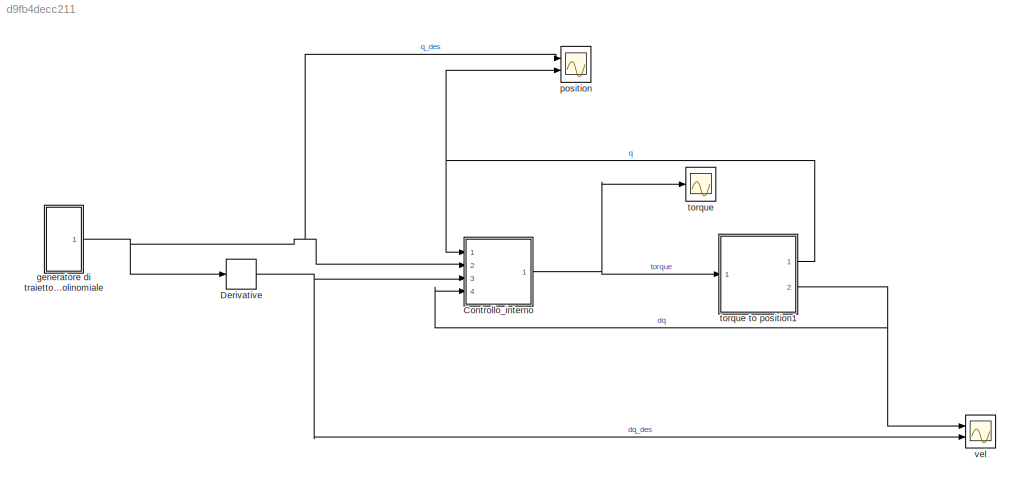
MODEL slx_d9fb4decc211
KIND model
CONFIG AbsTol = auto
CONFIG EnableMultiTasking = off
CONFIG FixedStep = 0.01
CONFIG MaxStep = auto
CONFIG MinStep = 0.01
CONFIG RelTol = 1e-3
CONFIG SampleTimeConstraint = Unconstrained
CONFIG Solver = daessc
CONFIG SolverName = daessc
CONFIG StartTime = 0.0
CONFIG StopTime = run_time
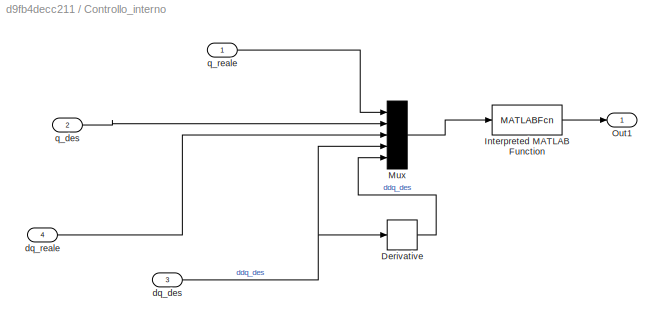
BLOCK [SubSystem] Controllo_interno
  Ports = [4, 1]
  RequestExecContextInheritance = off
BLOCK [Derivative] Controllo_interno/Derivative
BLOCK [MATLABFcn] Controllo_interno/Interpreted MATLAB Function
  MATLABFcn = controllo_interno_RNE_OSI(robot,K,ddqmax,u)
  Ports = [1, 1]
BLOCK [Mux] Controllo_interno/Mux
  DisplayOption = bar
  Inputs = 5
  Ports = [5, 1]
BLOCK [Outport] Controllo_interno/Out1
BLOCK [Inport] Controllo_interno/dq_des
  Port = 3
BLOCK [Inport] Controllo_interno/dq_reale
  Port = 4
BLOCK [Inport] Controllo_interno/q_des
  Port = 2
BLOCK [Inport] Controllo_interno/q_reale
BLOCK [Derivative] Derivative
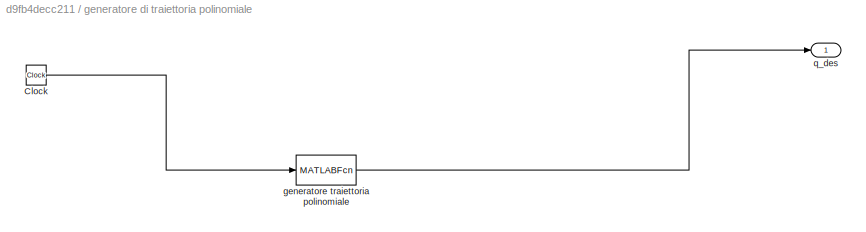
BLOCK [SubSystem] generatore di traiettoria polinomiale
  Ports = [0, 1]
  RequestExecContextInheritance = off
BLOCK [Clock] generatore di traiettoria polinomiale/Clock
BLOCK [MATLABFcn] generatore di traiettoria polinomiale/generatore traiettoria polinomiale
  MATLABFcn = prova_polinomiale( q0, q_fin, run_time, qmax, qmin, dqmax, ddqmax, u)
  Ports = [1, 1]
BLOCK [Outport] generatore di traiettoria polinomiale/q_des
  VectorParamsAs1DForOutWhenUnconnected = off
BLOCK [Scope] position
  Floating = off
  NumInputPorts = 2
  Ports = [2]
  ScopeSpecificationString = Simulink.scopes.TimeScopeBlockCfg('CurrentConfiguration', extmgr.ConfigurationSet(extmgr.Configuration('Core','General UI',true),extmgr.Configuration('Core','Source UI',true),extmgr.Configuration('Sources','WiredSimulink',true,'DataLoggingVariableName','ScopeData1'),extmgr.Configuration('Visuals','Time Domain',true,'SerializedDisplays',{struct('MinYLimReal','-2.64899','MaxYLimReal','2.97343','YLab...<+2045ch>
BLOCK [Scope] torque
  Floating = off
  NumInputPorts = 1
  Ports = [1]
  ScopeSpecificationString = Simulink.scopes.TimeScopeBlockCfg('CurrentConfiguration', extmgr.ConfigurationSet(extmgr.Configuration('Core','General UI',true),extmgr.Configuration('Core','Source UI',true),extmgr.Configuration('Sources','WiredSimulink',true,'DataLoggingVariableName','ScopeData2'),extmgr.Configuration('Visuals','Time Domain',true,'SerializedDisplays',{struct('MinYLimReal','-17.10872','MaxYLimReal','26.26325','YL...<+1692ch>
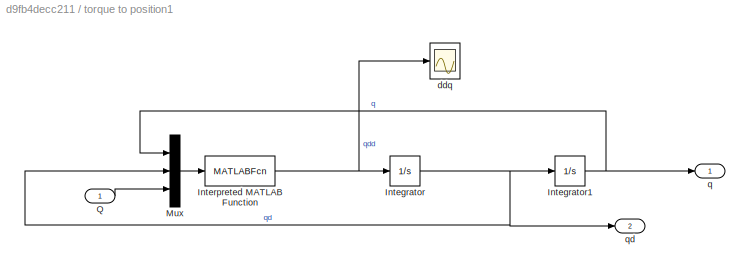
BLOCK [SubSystem] torque to position1
  Ports = [1, 2]
  RequestExecContextInheritance = off
BLOCK [Integrator] torque to position1/Integrator
  InitialCondition = dq0
  LowerSaturationLimit = -dqmax
  Ports = [1, 1]
  UpperSaturationLimit = dqmax
BLOCK [Integrator] torque to position1/Integrator1
  InitialCondition = q0
  LowerSaturationLimit = qmin
  Ports = [1, 1]
  UpperSaturationLimit = qmax2
BLOCK [MATLABFcn] torque to position1/Interpreted MATLAB Function
  MATLABFcn = accel_panda_RNE_OSI(robot,u)
  Ports = [1, 1]
BLOCK [Mux] torque to position1/Mux
  DisplayOption = bar
  Inputs = 3
  Ports = [3, 1]
BLOCK [Inport] torque to position1/Q
BLOCK [Scope] torque to position1/ddq
  Floating = off
  NumInputPorts = 1
  Ports = [1]
  ScopeSpecificationString = Simulink.scopes.TimeScopeBlockCfg('CurrentConfiguration', extmgr.ConfigurationSet(extmgr.Configuration('Core','General UI',true),extmgr.Configuration('Core','Source UI',true),extmgr.Configuration('Sources','WiredSimulink',true,'DataLoggingVariableName','ScopeData2'),extmgr.Configuration('Visuals','Time Domain',true,'SerializedDisplays',{struct('MinYLimReal','-1.63177','MaxYLimReal','1.63177','YLab...<+1803ch>
BLOCK [Outport] torque to position1/q
  VectorParamsAs1DForOutWhenUnconnected = off
BLOCK [Outport] torque to position1/qd
  Port = 2
  VectorParamsAs1DForOutWhenUnconnected = off
BLOCK [Scope] vel
  Floating = off
  NumInputPorts = 2
  Ports = [2]
  ScopeSpecificationString = Simulink.scopes.TimeScopeBlockCfg('CurrentConfiguration', extmgr.ConfigurationSet(extmgr.Configuration('Core','General UI',true),extmgr.Configuration('Core','Source UI',true),extmgr.Configuration('Sources','WiredSimulink',true,'DataLoggingVariableName','ScopeData3'),extmgr.Configuration('Visuals','Time Domain',true,'SerializedDisplays',{struct('MinYLimReal','-0.62785','MaxYLimReal','0.33701','YLab...<+1921ch>
LINE Controllo_interno/Derivative:1 -> Controllo_interno/Mux:5
LINE Controllo_interno/Interpreted MATLAB Function:1 -> Controllo_interno/Out1:1
LINE Controllo_interno/Mux:1 -> Controllo_interno/Interpreted MATLAB Function:1
NET Controllo_interno/dq_des:1 -> Controllo_interno/Derivative:1, Controllo_interno/Mux:4
LINE Controllo_interno/dq_reale:1 -> Controllo_interno/Mux:3
LINE Controllo_interno/q_des:1 -> Controllo_interno/Mux:2
LINE Controllo_interno/q_reale:1 -> Controllo_interno/Mux:1
NET Controllo_interno:1 -> torque to position1:1, torque:1
NET Derivative:1 -> Controllo_interno:3, vel:2
LINE generatore di traiettoria polinomiale/Clock:1 -> generatore di traiettoria polinomiale/generatore traiettoria polinomiale:1
LINE generatore di traiettoria polinomiale/generatore traiettoria polinomiale:1 -> generatore di traiettoria polinomiale/q_des:1
NET generatore di traiettoria polinomiale:1 -> Controllo_interno:2, Derivative:1, position:1
NET torque to position1/Integrator1:1 -> torque to position1/Mux:1, torque to position1/q:1
NET torque to position1/Integrator:1 -> torque to position1/Integrator1:1, torque to position1/Mux:2, torque to position1/qd:1
NET torque to position1/Interpreted MATLAB Function:1 -> torque to position1/Integrator:1, torque to position1/ddq:1
LINE torque to position1/Mux:1 -> torque to position1/Interpreted MATLAB Function:1
LINE torque to position1/Q:1 -> torque to position1/Mux:3
NET torque to position1:1 -> Controllo_interno:1, position:2
NET torque to position1:2 -> Controllo_interno:4, vel:1
note: NET lines group one-source signal fan-out (src -> all destinations, sorted); 1:1 wires keep LINE
